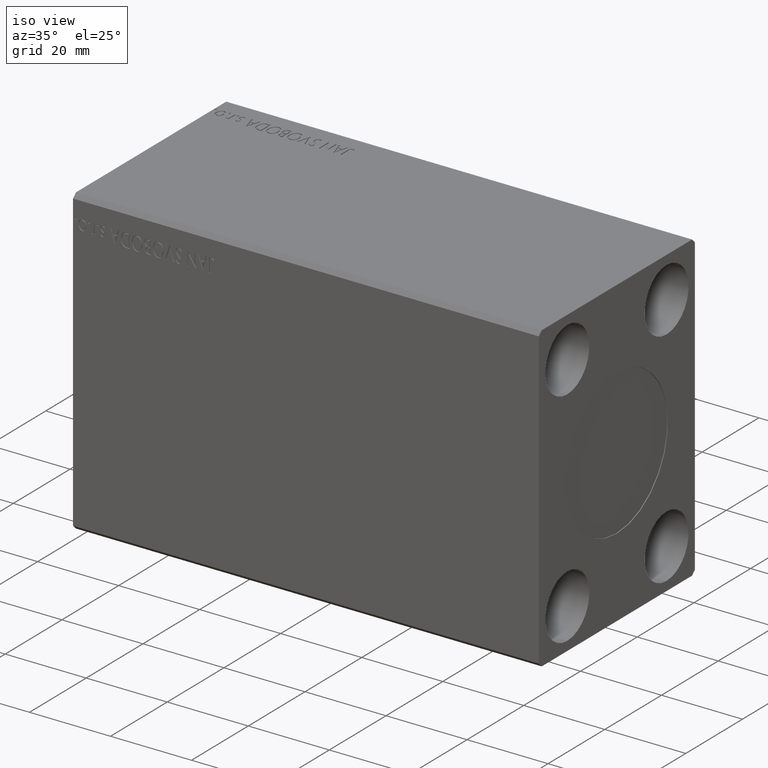
[diagram: clean part render]
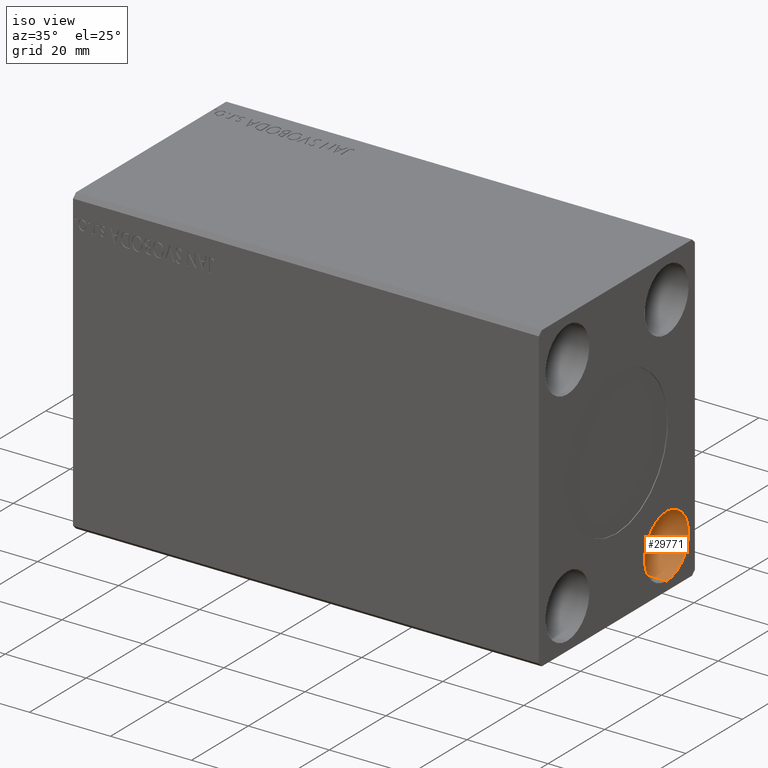
[diagram: same view with one face highlighted and labeled with its STEP entity id]
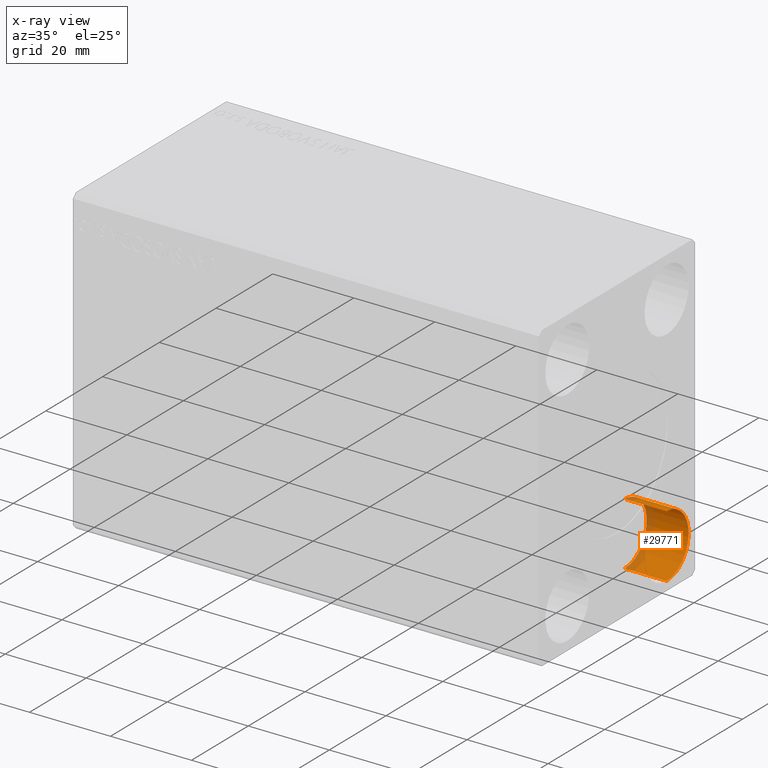
[diagram: x-ray of the same camera — body ghosted, the highlighted face saturated]
A machine part, iso view. The second image highlights one B-rep face of the part: STEP entity #29771.
The next image is the same camera in x-ray: the body ghosted, the highlighted face saturated — about 16% of this face is hidden behind the body in this view.
In plain terms, the highlighted cylindrical surface (partial cylindrical patch) has radius 7.75 mm, axis along (1, -0, -0).
Its self-contained STEP definition (entity closure, byte-faithful):
#112 = VERTEX_POINT ( 'NONE', #20038 ) ;
#2313 = CARTESIAN_POINT ( 'NONE',  ( 104.6700000000000017, 17.50000000000000000, -27.50000000000000000 ) ) ;
#3034 = DIRECTION ( 'NONE',  ( 1.000000000000000000, -0.000000000000000000, -0.000000000000000000 ) ) ;
#3688 = CARTESIAN_POINT ( 'NONE',  ( 104.6700000000000017, 17.50000000000000000, -19.74999999999999645 ) ) ;
#3910 = CIRCLE ( 'NONE', #34204, 7.750000000000003553 ) ;
#4139 = CARTESIAN_POINT ( 'NONE',  ( 104.6700000000000017, 17.50000000000000000, -35.25000000000000000 ) ) ;
#4142 = AXIS2_PLACEMENT_3D ( 'NONE', #35788, #6298, #32572 ) ;
#4347 = CARTESIAN_POINT ( 'NONE',  ( 115.0000000000000000, 17.50000000000000000, -19.74999999999999645 ) ) ;
#4543 = EDGE_CURVE ( 'NONE', #22757, #6862, #3910, .T. ) ;
#5552 = DIRECTION ( 'NONE',  ( -1.000000000000000000, -0.000000000000000000, -0.000000000000000000 ) ) ;
#5898 = VERTEX_POINT ( 'NONE', #4347 ) ;
#6298 = DIRECTION ( 'NONE',  ( -1.000000000000000000, -0.000000000000000000, -0.000000000000000000 ) ) ;
#6486 = CARTESIAN_POINT ( 'NONE',  ( 104.6700000000000017, 17.50000000000000000, -35.25000000000000000 ) ) ;
#6862 = VERTEX_POINT ( 'NONE', #4139 ) ;
#8184 = ORIENTED_EDGE ( 'NONE', *, *, #4543, .T. ) ;
#9874 = ORIENTED_EDGE ( 'NONE', *, *, #28264, .F. ) ;
#14435 = CIRCLE ( 'NONE', #4142, 7.750000000000003553 ) ;
#14848 = DIRECTION ( 'NONE',  ( 1.000000000000000000, -0.000000000000000000, -0.000000000000000000 ) ) ;
#18285 = LINE ( 'NONE', #31867, #39104 ) ;
#18403 = FACE_OUTER_BOUND ( 'NONE', #22607, .T. ) ;
#19120 = ORIENTED_EDGE ( 'NONE', *, *, #31629, .F. ) ;
#20038 = CARTESIAN_POINT ( 'NONE',  ( 115.0000000000000000, 17.50000000000000000, -35.25000000000000000 ) ) ;
#21846 = DIRECTION ( 'NONE',  ( 0.000000000000000000, 0.000000000000000000, -1.000000000000000000 ) ) ;
#22607 = EDGE_LOOP ( 'NONE', ( #9874, #8184, #31432, #19120 ) ) ;
#22757 = VERTEX_POINT ( 'NONE', #3688 ) ;
#26295 = LINE ( 'NONE', #6486, #37887 ) ;
#28264 = EDGE_CURVE ( 'NONE', #22757, #5898, #18285, .T. ) ;
#29771 = ADVANCED_FACE ( 'NONE', ( #18403 ), #41484, .F. ) ;
#31432 = ORIENTED_EDGE ( 'NONE', *, *, #33860, .T. ) ;
#31557 = DIRECTION ( 'NONE',  ( 1.000000000000000000, -0.000000000000000000, -0.000000000000000000 ) ) ;
#31629 = EDGE_CURVE ( 'NONE', #5898, #112, #14435, .T. ) ;
#31867 = CARTESIAN_POINT ( 'NONE',  ( 104.6700000000000017, 17.50000000000000000, -19.74999999999999645 ) ) ;
#32572 = DIRECTION ( 'NONE',  ( 0.000000000000000000, 0.000000000000000000, 1.000000000000000000 ) ) ;
#33860 = EDGE_CURVE ( 'NONE', #6862, #112, #26295, .T. ) ;
#34204 = AXIS2_PLACEMENT_3D ( 'NONE', #2313, #5552, #41735 ) ;
#35788 = CARTESIAN_POINT ( 'NONE',  ( 115.0000000000000000, 17.50000000000000000, -27.50000000000000000 ) ) ;
#36395 = AXIS2_PLACEMENT_3D ( 'NONE', #38227, #31557, #21846 ) ;
#37887 = VECTOR ( 'NONE', #3034, 1000.000000000000000 ) ;
#38227 = CARTESIAN_POINT ( 'NONE',  ( 104.6700000000000017, 17.50000000000000000, -27.50000000000000000 ) ) ;
#39104 = VECTOR ( 'NONE', #14848, 1000.000000000000000 ) ;
#41484 = CYLINDRICAL_SURFACE ( 'NONE', #36395, 7.750000000000003553 ) ;
#41735 = DIRECTION ( 'NONE',  ( 0.000000000000000000, 0.000000000000000000, 1.000000000000000000 ) ) ;